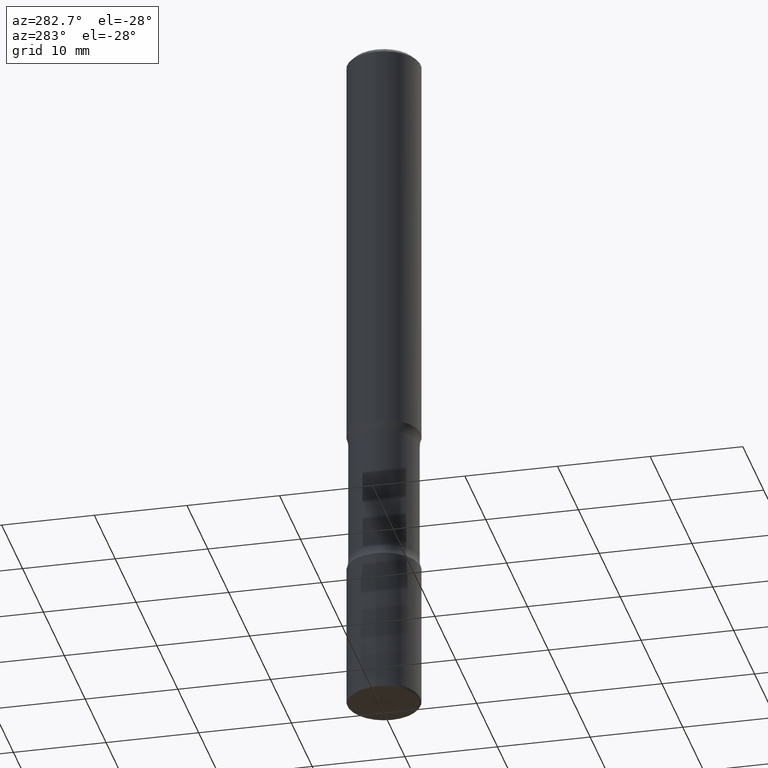
[diagram: clean part render]
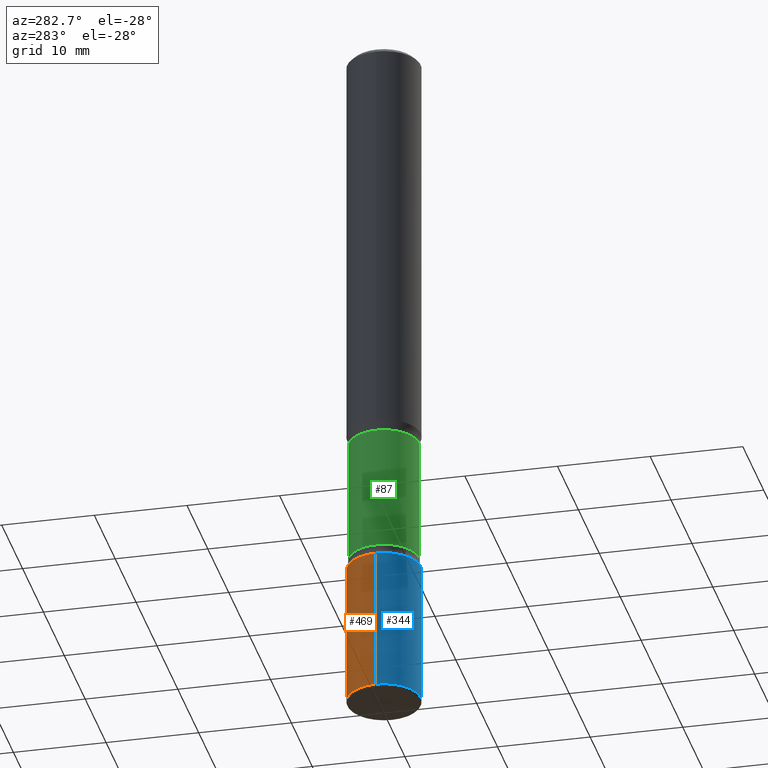
[diagram: same view with three faces highlighted in distinct colors, each labeled with its STEP entity id]
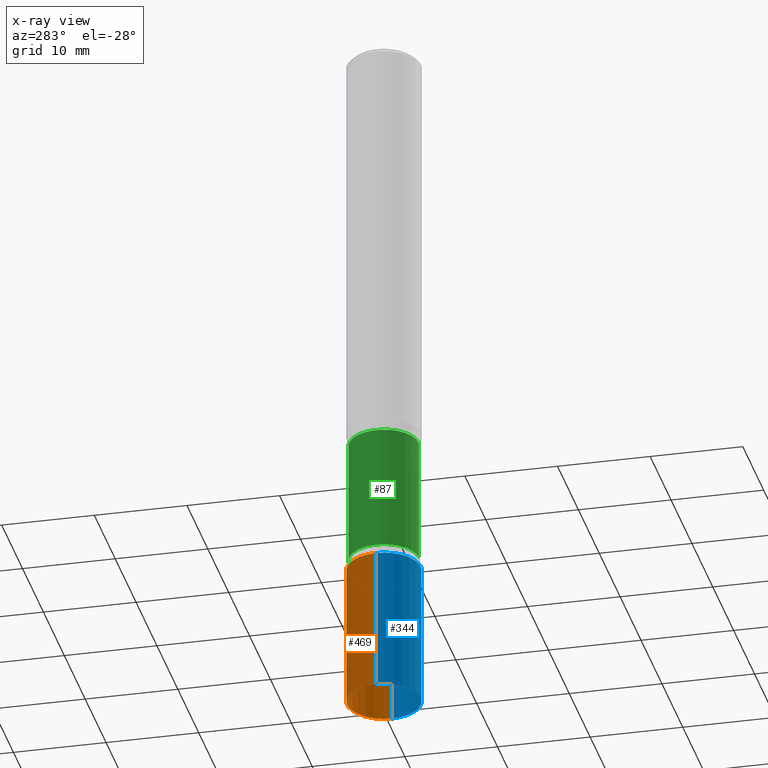
[diagram: x-ray of the same camera — body ghosted, the three highlighted faces saturated]
A machine part, auxiliary view with three faces highlighted in distinct colors.
The next image is the same camera in x-ray (body ghosted, the three faces saturated) — at least one of them is partly hidden behind the body in this view.
Their STEP definitions:

[orange] entity #469 — the highlighted cylindrical surface (partial cylindrical patch) has radius 3.9688 mm, axis along (-0, 0, 1).
#4 = AXIS2_PLACEMENT_3D ( 'NONE', #192, #530, #363 ) ;
#11 = DIRECTION ( 'NONE',  ( 1.000000000000000000, -6.982962677686270655E-15, 0.000000000000000000 ) ) ;
#32 = CIRCLE ( 'NONE', #421, 0.1562500000000001388 ) ;
#40 = DIRECTION ( 'NONE',  ( 1.000000000000000000, -6.982962677686269077E-15, 0.000000000000000000 ) ) ;
#82 = CARTESIAN_POINT ( 'NONE',  ( -0.1562500000000001388, 1.110223024625157526E-15, -7.685836078523296765E-30 ) ) ;
#85 = CARTESIAN_POINT ( 'NONE',  ( -0.1562500000000001665, -9.329306178515849742E-15, -2.990000000000000657 ) ) ;
#96 = EDGE_CURVE ( 'NONE', #458, #97, #32, .T. ) ;
#97 = VERTEX_POINT ( 'NONE', #85 ) ;
#110 = CIRCLE ( 'NONE', #548, 0.1562500000000001110 ) ;
#117 = CARTESIAN_POINT ( 'NONE',  ( 0.1562500000000001665, -1.153061712152948940E-14, -2.990000000000000657 ) ) ;
#126 = CARTESIAN_POINT ( 'NONE',  ( 7.311951730493559366E-29, -1.043952920314100786E-14, -2.990000000000000657 ) ) ;
#137 = ORIENTED_EDGE ( 'NONE', *, *, #148, .F. ) ;
#148 = EDGE_CURVE ( 'NONE', #458, #236, #191, .T. ) ;
#191 = LINE ( 'NONE', #228, #432 ) ;
#192 = CARTESIAN_POINT ( 'NONE',  ( 0.000000000000000000, 0.000000000000000000, 0.000000000000000000 ) ) ;
#204 = VERTEX_POINT ( 'NONE', #525 ) ;
#214 = DIRECTION ( 'NONE',  ( -2.445468806185136597E-29, 3.491481338843145583E-15, 1.000000000000000000 ) ) ;
#228 = CARTESIAN_POINT ( 'NONE',  ( 0.1562500000000001388, -1.091087918388480160E-15, 7.619026212181157383E-30 ) ) ;
#231 = CYLINDRICAL_SURFACE ( 'NONE', #4, 0.1562500000000001388 ) ;
#236 = VERTEX_POINT ( 'NONE', #354 ) ;
#259 = DIRECTION ( 'NONE',  ( -2.445468806185136877E-29, 3.491481338843145188E-15, 1.000000000000000000 ) ) ;
#273 = FACE_OUTER_BOUND ( 'NONE', #446, .T. ) ;
#354 = CARTESIAN_POINT ( 'NONE',  ( 0.1562500000000001110, -9.383356098140953236E-15, -2.375000000000000444 ) ) ;
#363 = DIRECTION ( 'NONE',  ( 1.000000000000000000, -6.982962677686266711E-15, 4.876176775795936353E-29 ) ) ;
#383 = EDGE_CURVE ( 'NONE', #236, #204, #110, .T. ) ;
#384 = LINE ( 'NONE', #82, #521 ) ;
#398 = ORIENTED_EDGE ( 'NONE', *, *, #383, .F. ) ;
#416 = CARTESIAN_POINT ( 'NONE',  ( 5.807988414689700538E-29, -8.292268179752471696E-15, -2.375000000000000444 ) ) ;
#420 = ORIENTED_EDGE ( 'NONE', *, *, #550, .T. ) ;
#421 = AXIS2_PLACEMENT_3D ( 'NONE', #126, #214, #40 ) ;
#432 = VECTOR ( 'NONE', #493, 39.37007874015748143 ) ;
#446 = EDGE_LOOP ( 'NONE', ( #531, #420, #398, #137 ) ) ;
#458 = VERTEX_POINT ( 'NONE', #117 ) ;
#469 = ADVANCED_FACE ( 'NONE', ( #273 ), #231, .T. ) ;
#493 = DIRECTION ( 'NONE',  ( -2.445468806185136877E-29, 3.491481338843145188E-15, 1.000000000000000000 ) ) ;
#521 = VECTOR ( 'NONE', #259, 39.37007874015748143 ) ;
#525 = CARTESIAN_POINT ( 'NONE',  ( -0.1562500000000001110, -8.255675666821583237E-15, -2.375000000000000444 ) ) ;
#530 = DIRECTION ( 'NONE',  ( -2.445468806185136597E-29, 3.491481338843145583E-15, 1.000000000000000000 ) ) ;
#531 = ORIENTED_EDGE ( 'NONE', *, *, #96, .T. ) ;
#548 = AXIS2_PLACEMENT_3D ( 'NONE', #416, #549, #11 ) ;
#549 = DIRECTION ( 'NONE',  ( -2.445468806185136597E-29, 3.491481338843145583E-15, 1.000000000000000000 ) ) ;
#550 = EDGE_CURVE ( 'NONE', #97, #204, #384, .T. ) ;

[blue] entity #344 — the highlighted cylindrical surface (partial cylindrical patch) has radius 3.9688 mm, axis along (-0, 0, 1).
#5 = DIRECTION ( 'NONE',  ( -2.445468806185136597E-29, 3.491481338843145583E-15, 1.000000000000000000 ) ) ;
#82 = CARTESIAN_POINT ( 'NONE',  ( -0.1562500000000001388, 1.110223024625157526E-15, -7.685836078523296765E-30 ) ) ;
#85 = CARTESIAN_POINT ( 'NONE',  ( -0.1562500000000001665, -9.329306178515849742E-15, -2.990000000000000657 ) ) ;
#97 = VERTEX_POINT ( 'NONE', #85 ) ;
#117 = CARTESIAN_POINT ( 'NONE',  ( 0.1562500000000001665, -1.153061712152948940E-14, -2.990000000000000657 ) ) ;
#138 = DIRECTION ( 'NONE',  ( -2.445468806185136597E-29, 3.491481338843145583E-15, 1.000000000000000000 ) ) ;
#148 = EDGE_CURVE ( 'NONE', #458, #236, #191, .T. ) ;
#154 = ORIENTED_EDGE ( 'NONE', *, *, #550, .F. ) ;
#188 = ORIENTED_EDGE ( 'NONE', *, *, #203, .F. ) ;
#191 = LINE ( 'NONE', #228, #432 ) ;
#201 = CARTESIAN_POINT ( 'NONE',  ( 0.000000000000000000, 0.000000000000000000, 0.000000000000000000 ) ) ;
#203 = EDGE_CURVE ( 'NONE', #204, #236, #209, .T. ) ;
#204 = VERTEX_POINT ( 'NONE', #525 ) ;
#209 = CIRCLE ( 'NONE', #484, 0.1562500000000001110 ) ;
#228 = CARTESIAN_POINT ( 'NONE',  ( 0.1562500000000001388, -1.091087918388480160E-15, 7.619026212181157383E-30 ) ) ;
#236 = VERTEX_POINT ( 'NONE', #354 ) ;
#237 = FACE_OUTER_BOUND ( 'NONE', #372, .T. ) ;
#245 = CARTESIAN_POINT ( 'NONE',  ( 7.311951730493559366E-29, -1.043952920314100786E-14, -2.990000000000000657 ) ) ;
#258 = EDGE_CURVE ( 'NONE', #97, #458, #558, .T. ) ;
#259 = DIRECTION ( 'NONE',  ( -2.445468806185136877E-29, 3.491481338843145188E-15, 1.000000000000000000 ) ) ;
#320 = DIRECTION ( 'NONE',  ( 1.000000000000000000, -6.982962677686266711E-15, 4.876176775795936353E-29 ) ) ;
#344 = ADVANCED_FACE ( 'NONE', ( #237 ), #447, .T. ) ;
#349 = AXIS2_PLACEMENT_3D ( 'NONE', #201, #506, #320 ) ;
#354 = CARTESIAN_POINT ( 'NONE',  ( 0.1562500000000001110, -9.383356098140953236E-15, -2.375000000000000444 ) ) ;
#372 = EDGE_LOOP ( 'NONE', ( #154, #543, #494, #188 ) ) ;
#384 = LINE ( 'NONE', #82, #521 ) ;
#432 = VECTOR ( 'NONE', #493, 39.37007874015748143 ) ;
#447 = CYLINDRICAL_SURFACE ( 'NONE', #349, 0.1562500000000001388 ) ;
#449 = CARTESIAN_POINT ( 'NONE',  ( 5.807988414689700538E-29, -8.292268179752471696E-15, -2.375000000000000444 ) ) ;
#458 = VERTEX_POINT ( 'NONE', #117 ) ;
#483 = DIRECTION ( 'NONE',  ( 1.000000000000000000, -6.982962677686269077E-15, 0.000000000000000000 ) ) ;
#484 = AXIS2_PLACEMENT_3D ( 'NONE', #449, #138, #497 ) ;
#493 = DIRECTION ( 'NONE',  ( -2.445468806185136877E-29, 3.491481338843145188E-15, 1.000000000000000000 ) ) ;
#494 = ORIENTED_EDGE ( 'NONE', *, *, #148, .T. ) ;
#497 = DIRECTION ( 'NONE',  ( 1.000000000000000000, -6.982962677686270655E-15, 0.000000000000000000 ) ) ;
#506 = DIRECTION ( 'NONE',  ( -2.445468806185136597E-29, 3.491481338843145583E-15, 1.000000000000000000 ) ) ;
#521 = VECTOR ( 'NONE', #259, 39.37007874015748143 ) ;
#525 = CARTESIAN_POINT ( 'NONE',  ( -0.1562500000000001110, -8.255675666821583237E-15, -2.375000000000000444 ) ) ;
#543 = ORIENTED_EDGE ( 'NONE', *, *, #258, .T. ) ;
#550 = EDGE_CURVE ( 'NONE', #97, #204, #384, .T. ) ;
#552 = AXIS2_PLACEMENT_3D ( 'NONE', #245, #5, #483 ) ;
#558 = CIRCLE ( 'NONE', #552, 0.1562500000000001388 ) ;

[green] entity #87 — the highlighted cylindrical surface (edge-blend (fillet) strip) has radius 3.7703 mm, axis along (0, -0, -1).
#12 = VERTEX_POINT ( 'NONE', #418 ) ;
#17 = EDGE_LOOP ( 'NONE', ( #308, #157, #288, #485 ) ) ;
#20 = VERTEX_POINT ( 'NONE', #406 ) ;
#36 = CIRCLE ( 'NONE', #380, 0.1484375000000000278 ) ;
#54 = EDGE_CURVE ( 'NONE', #12, #20, #36, .T. ) ;
#60 = LINE ( 'NONE', #235, #396 ) ;
#61 = VERTEX_POINT ( 'NONE', #345 ) ;
#87 = ADVANCED_FACE ( 'NONE', ( #91 ), #437, .T. ) ;
#91 = FACE_OUTER_BOUND ( 'NONE', #17, .T. ) ;
#106 = DIRECTION ( 'NONE',  ( 6.982962677686265133E-15, 1.000000000000000000, -3.680805717779217644E-15 ) ) ;
#111 = VERTEX_POINT ( 'NONE', #361 ) ;
#157 = ORIENTED_EDGE ( 'NONE', *, *, #54, .T. ) ;
#161 = DIRECTION ( 'NONE',  ( 2.523926373086038410E-29, -3.379125637513666367E-15, -1.000000000000000000 ) ) ;
#211 = EDGE_CURVE ( 'NONE', #111, #61, #249, .T. ) ;
#217 = CARTESIAN_POINT ( 'NONE',  ( 4.340320582405264943E-29, -6.327300400853882778E-15, -1.793498159084609966 ) ) ;
#230 = CARTESIAN_POINT ( 'NONE',  ( 5.698202263795362163E-29, -8.145282435205020267E-15, -2.331501840915390478 ) ) ;
#235 = CARTESIAN_POINT ( 'NONE',  ( 1.036533522469128973E-15, 0.1484374999999896194, -3.000000000000000444 ) ) ;
#249 = CIRCLE ( 'NONE', #556, 0.1484375000000000000 ) ;
#250 = EDGE_CURVE ( 'NONE', #12, #111, #307, .T. ) ;
#288 = ORIENTED_EDGE ( 'NONE', *, *, #478, .T. ) ;
#296 = DIRECTION ( 'NONE',  ( 2.523926373086038410E-29, -3.379125637513666367E-15, -1.000000000000000000 ) ) ;
#307 = LINE ( 'NONE', #544, #473 ) ;
#308 = ORIENTED_EDGE ( 'NONE', *, *, #250, .F. ) ;
#345 = CARTESIAN_POINT ( 'NONE',  ( 1.036533522469112013E-15, 0.1484374999999918399, -2.331501840915391366 ) ) ;
#361 = CARTESIAN_POINT ( 'NONE',  ( -1.045153991847949569E-15, -0.1484375000000081601, -2.331501840915390034 ) ) ;
#380 = AXIS2_PLACEMENT_3D ( 'NONE', #217, #394, #397 ) ;
#394 = DIRECTION ( 'NONE',  ( 2.523926373086038410E-29, -3.379125637513666367E-15, -1.000000000000000000 ) ) ;
#396 = VECTOR ( 'NONE', #400, 39.37007874015748143 ) ;
#397 = DIRECTION ( 'NONE',  ( 6.982962677686265133E-15, 1.000000000000000000, -3.680805717779216855E-15 ) ) ;
#400 = DIRECTION ( 'NONE',  ( 2.523926373086038410E-29, -3.379125637513666367E-15, -1.000000000000000000 ) ) ;
#403 = DIRECTION ( 'NONE',  ( 2.523926373086038410E-29, -3.379125637513666367E-15, -1.000000000000000000 ) ) ;
#406 = CARTESIAN_POINT ( 'NONE',  ( 1.036533522469098602E-15, 0.1484374999999936995, -1.793498159084610633 ) ) ;
#418 = CARTESIAN_POINT ( 'NONE',  ( -1.045153991847964360E-15, -0.1484375000000063560, -1.793498159084609522 ) ) ;
#429 = CARTESIAN_POINT ( 'NONE',  ( 7.385442397868472267E-29, -1.040422170319851125E-14, -2.999999999999999556 ) ) ;
#437 = CYLINDRICAL_SURFACE ( 'NONE', #466, 0.1484375000000000000 ) ;
#466 = AXIS2_PLACEMENT_3D ( 'NONE', #429, #296, #474 ) ;
#473 = VECTOR ( 'NONE', #161, 39.37007874015748143 ) ;
#474 = DIRECTION ( 'NONE',  ( 6.982962677686266711E-15, 1.000000000000000000, -3.680805717779217644E-15 ) ) ;
#478 = EDGE_CURVE ( 'NONE', #20, #61, #60, .T. ) ;
#485 = ORIENTED_EDGE ( 'NONE', *, *, #211, .F. ) ;
#544 = CARTESIAN_POINT ( 'NONE',  ( -1.018355171544137761E-15, -0.1484375000000104083, -2.999999999999999112 ) ) ;
#556 = AXIS2_PLACEMENT_3D ( 'NONE', #230, #403, #106 ) ;